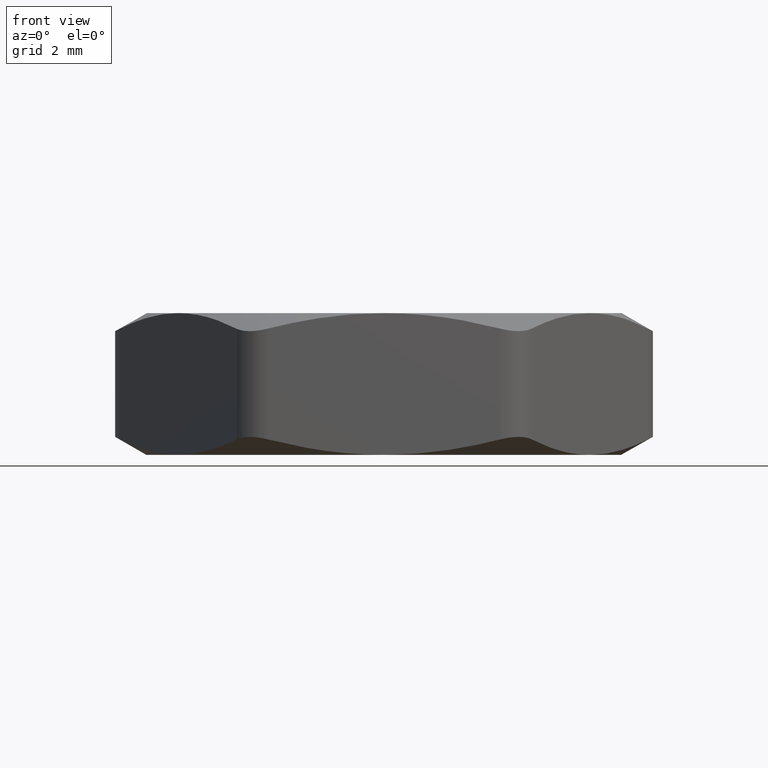
[diagram: clean part render]
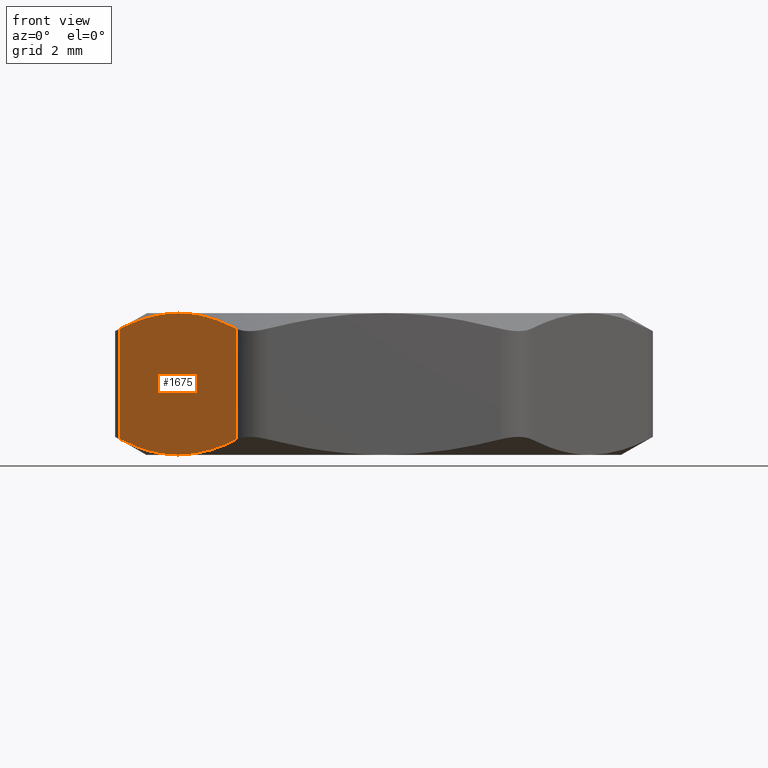
[diagram: same view with one face highlighted and labeled with its STEP entity id]
A machine part, front view. The second image highlights one B-rep face of the part: STEP entity #1675.
In plain terms, the highlighted planar face has unit normal (0.866, 0.5, 0).
Its self-contained STEP definition (entity closure, byte-faithful):
#93 = DIRECTION ( 'NONE',  ( 0.0000000000000000000, 0.0000000000000000000, -1.000000000000000000 ) ) ;
#94 = VECTOR ( 'NONE', #93, 39.37007874015748100 ) ;
#95 = CARTESIAN_POINT ( 'NONE',  ( -0.3723909236273086300, -0.02499999999999983800, 0.2000000000000000100 ) ) ;
#96 = LINE ( 'NONE', #95, #94 ) ;
#148 = CARTESIAN_POINT ( 'NONE',  ( -0.2901185102677871200, -0.1674999999999999300, 0.2000000000000000100 ) ) ;
#149 = CARTESIAN_POINT ( 'NONE',  ( -0.3180710791266950200, -0.1190847305343035200, 0.2000000000000003200 ) ) ;
#150 = CARTESIAN_POINT ( 'NONE',  ( -0.3454243599861887600, -0.07170745833195911500, 0.1916562742965463300 ) ) ;
#161 = DIRECTION ( 'NONE',  ( 0.0000000000000000000, 0.0000000000000000000, 1.000000000000000000 ) ) ;
#162 = VECTOR ( 'NONE', #161, 39.37007874015748100 ) ;
#163 = CARTESIAN_POINT ( 'NONE',  ( -0.2078460969082653300, -0.3100000000000000500, 0.2000000000000000100 ) ) ;
#164 = LINE ( 'NONE', #163, #162 ) ;
#165 = CARTESIAN_POINT ( 'NONE',  ( -0.2901185102677870700, -0.1674999999999999300, 0.0000000000000000000 ) ) ;
#166 = CARTESIAN_POINT ( 'NONE',  ( -0.2621659414088789400, -0.2159152694656962500, -2.826035219683515800E-016 ) ) ;
#167 = CARTESIAN_POINT ( 'NONE',  ( -0.2348126605493852400, -0.2632925416680406700, 0.008343725703453703000 ) ) ;
#168 = CARTESIAN_POINT ( 'NONE',  ( -0.2078460969082653900, -0.3100000000000000000, 0.02207161127339497500 ) ) ;
#169 = CARTESIAN_POINT ( 'NONE',  ( -0.2078460969082653900, -0.3100000000000000000, 0.02207161127339497500 ) ) ;
#170 = B_SPLINE_CURVE_WITH_KNOTS ( 'NONE', 3,
 ( #168, #167, #166, #165 ),
 .UNSPECIFIED., .F., .F.,
 ( 4, 4 ),
 ( 0.0007543718654058168800, 0.004971059178098986800 ),
 .UNSPECIFIED. ) ;
#171 = CARTESIAN_POINT ( 'NONE',  ( -0.2901185102677870700, -0.1674999999999999300, 0.0000000000000000000 ) ) ;
#243 = CARTESIAN_POINT ( 'NONE',  ( -0.3723909236273086300, -0.02499999999999984900, 0.1779283887266050500 ) ) ;
#244 = B_SPLINE_CURVE_WITH_KNOTS ( 'NONE', 3,
 ( #243, #150, #149, #148 ),
 .UNSPECIFIED., .F., .F.,
 ( 4, 4 ),
 ( 0.0007543718654058150300, 0.004971059178098985100 ),
 .UNSPECIFIED. ) ;
#246 = CARTESIAN_POINT ( 'NONE',  ( -0.2078460969082653300, -0.3100000000000000000, 0.1779283887266053200 ) ) ;
#247 = CARTESIAN_POINT ( 'NONE',  ( -0.2212998085085120000, -0.2866974879579941000, 0.1847772781808608700 ) ) ;
#248 = CARTESIAN_POINT ( 'NONE',  ( -0.2348611031469640700, -0.2632086366277836000, 0.1903271910986637000 ) ) ;
#249 = CARTESIAN_POINT ( 'NONE',  ( -0.2554191496775287100, -0.2276010555324803900, 0.1960427758308550500 ) ) ;
#250 = CARTESIAN_POINT ( 'NONE',  ( -0.2623078565648568300, -0.2156694652051783800, 0.1975130020474694900 ) ) ;
#257 = CARTESIAN_POINT ( 'NONE',  ( -0.2761648598017485400, -0.1916684315582355400, 0.1994924773069999300 ) ) ;
#258 = CARTESIAN_POINT ( 'NONE',  ( -0.2831591889988497900, -0.1795538980239936600, 0.2000000000000002900 ) ) ;
#259 = CARTESIAN_POINT ( 'NONE',  ( -0.2901185102677871200, -0.1674999999999999300, 0.2000000000000000100 ) ) ;
#260 = CARTESIAN_POINT ( 'NONE',  ( -0.2901185102677871200, -0.1674999999999999300, 0.2000000000000000100 ) ) ;
#261 = B_SPLINE_CURVE_WITH_KNOTS ( 'NONE', 3,
 ( #259, #258, #257, #250, #249, #248, #247, #246 ),
 .UNSPECIFIED., .F., .F.,
 ( 4, 2, 2, 4 ),
 ( 0.004971059178098985100, 0.006020883322985449500, 0.007070707467871913800, 0.009170355757644840800 ),
 .UNSPECIFIED. ) ;
#610 = CARTESIAN_POINT ( 'NONE',  ( -0.3723909236273086300, -0.02499999999999975500, 0.02207161127339470400 ) ) ;
#653 = CARTESIAN_POINT ( 'NONE',  ( -0.3723909236273086300, -0.02499999999999984900, 0.1779283887266050500 ) ) ;
#824 = CARTESIAN_POINT ( 'NONE',  ( -0.2078460969082653300, -0.3100000000000000000, 0.1779283887266053200 ) ) ;
#842 = DIRECTION ( 'NONE',  ( -0.4999999999999995600, 0.8660254037844388200, 0.0000000000000000000 ) ) ;
#843 = DIRECTION ( 'NONE',  ( 0.8660254037844389300, 0.4999999999999996100, 0.0000000000000000000 ) ) ;
#844 = CARTESIAN_POINT ( 'NONE',  ( -0.3868246803570492000, 1.375688690776685800E-016, 0.2000000000000000100 ) ) ;
#853 = PLANE ( 'NONE',  #855 ) ;
#855 = AXIS2_PLACEMENT_3D ( 'NONE', #844, #843, #842 ) ;
#856 = FACE_OUTER_BOUND ( 'NONE', #1632, .T. ) ;
#1054 = CARTESIAN_POINT ( 'NONE',  ( -0.2970778315367241200, -0.1554461019760060600, -2.891000148812733800E-016 ) ) ;
#1063 = CARTESIAN_POINT ( 'NONE',  ( -0.3040721607338254300, -0.1433315684417642300, 0.0005075226930000264500 ) ) ;
#1064 = CARTESIAN_POINT ( 'NONE',  ( -0.3248178708580453100, -0.1073989444675193100, 0.003957224169144945100 ) ) ;
#1065 = CARTESIAN_POINT ( 'NONE',  ( -0.3453759173886100100, -0.07179136337221615800, 0.009672808901336349100 ) ) ;
#1066 = CARTESIAN_POINT ( 'NONE',  ( -0.3179291639707170800, -0.1193305347948213800, 0.002486997952530546100 ) ) ;
#1145 = CARTESIAN_POINT ( 'NONE',  ( -0.3723909236273086300, -0.02499999999999975500, 0.02207161127339470400 ) ) ;
#1148 = CARTESIAN_POINT ( 'NONE',  ( -0.3589372120270620200, -0.04830251204200566200, 0.01522272181913916300 ) ) ;
#1239 = B_SPLINE_CURVE_WITH_KNOTS ( 'NONE', 3,
 ( #1241, #1054, #1063, #1066, #1064, #1065, #1148, #1145 ),
 .UNSPECIFIED., .F., .F.,
 ( 4, 2, 2, 4 ),
 ( 0.004971059178098986800, 0.006020883322985451200, 0.007070707467871913800, 0.009170355757644842500 ),
 .UNSPECIFIED. ) ;
#1241 = CARTESIAN_POINT ( 'NONE',  ( -0.2901185102677870700, -0.1674999999999999300, 0.0000000000000000000 ) ) ;
#1489 = VERTEX_POINT ( 'NONE', #610 ) ;
#1505 = VERTEX_POINT ( 'NONE', #653 ) ;
#1547 = EDGE_CURVE ( 'NONE', #1505, #1489, #96, .T. ) ;
#1626 = EDGE_CURVE ( 'NONE', #1627, #1628, #170, .T. ) ;
#1627 = VERTEX_POINT ( 'NONE', #169 ) ;
#1628 = VERTEX_POINT ( 'NONE', #171 ) ;
#1629 = ORIENTED_EDGE ( 'NONE', *, *, #1630, .T. ) ;
#1630 = EDGE_CURVE ( 'NONE', #1627, #1689, #164, .T. ) ;
#1632 = EDGE_LOOP ( 'NONE', ( #1676, #1629, #1649, #1652, #1654, #1968 ) ) ;
#1649 = ORIENTED_EDGE ( 'NONE', *, *, #1650, .F. ) ;
#1650 = EDGE_CURVE ( 'NONE', #1651, #1689, #261, .T. ) ;
#1651 = VERTEX_POINT ( 'NONE', #260 ) ;
#1652 = ORIENTED_EDGE ( 'NONE', *, *, #1653, .F. ) ;
#1653 = EDGE_CURVE ( 'NONE', #1505, #1651, #244, .T. ) ;
#1654 = ORIENTED_EDGE ( 'NONE', *, *, #1547, .T. ) ;
#1675 = ADVANCED_FACE ( 'NONE', ( #856 ), #853, .F. ) ;
#1676 = ORIENTED_EDGE ( 'NONE', *, *, #1626, .F. ) ;
#1689 = VERTEX_POINT ( 'NONE', #824 ) ;
#1968 = ORIENTED_EDGE ( 'NONE', *, *, #1969, .F. ) ;
#1969 = EDGE_CURVE ( 'NONE', #1628, #1489, #1239, .T. ) ;